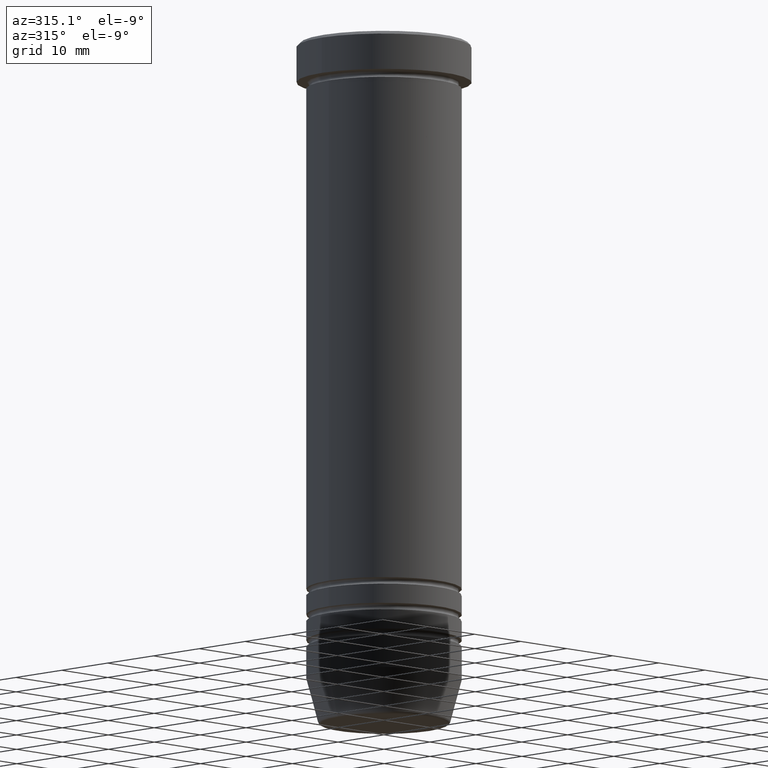
[diagram: clean part render]
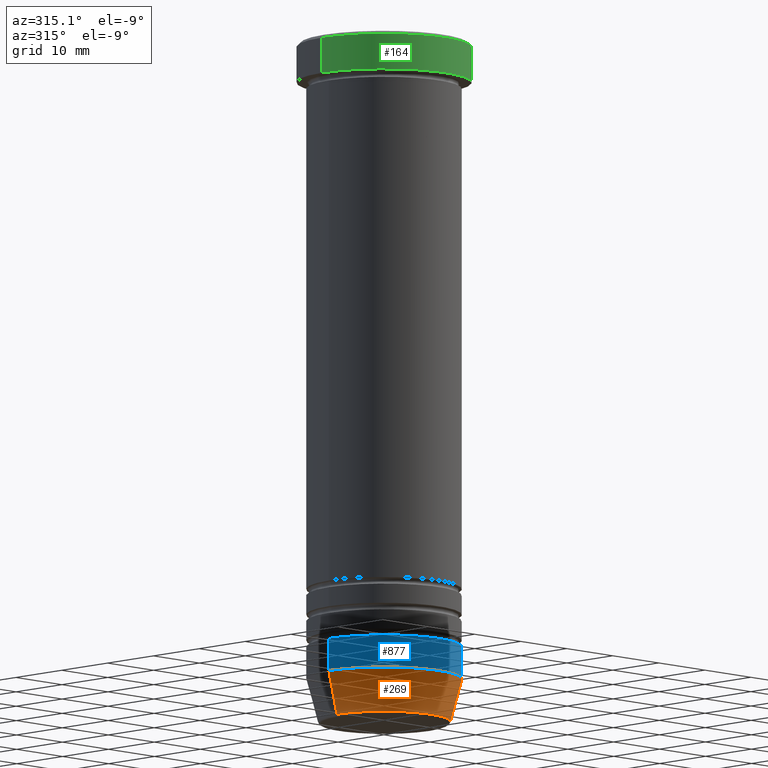
[diagram: same view with three faces highlighted in distinct colors, each labeled with its STEP entity id]
A machine part, auxiliary view with three faces highlighted in distinct colors.
Their STEP definitions:

[orange] entity #269 — the highlighted conical surface has half-angle 15 deg.
#17 = EDGE_LOOP ( 'NONE', ( #965, #77, #167, #592 ) ) ;
#26 = DIRECTION ( 'NONE',  ( -0.2588190451025214611, 3.169619151431774186E-17, 0.9659258262890679791 ) ) ;
#77 = ORIENTED_EDGE ( 'NONE', *, *, #233, .T. ) ;
#101 = DIRECTION ( 'NONE',  ( -0.000000000000000000, -0.000000000000000000, 1.000000000000000000 ) ) ;
#154 = AXIS2_PLACEMENT_3D ( 'NONE', #878, #101, #1072 ) ;
#167 = ORIENTED_EDGE ( 'NONE', *, *, #969, .T. ) ;
#185 = EDGE_CURVE ( 'NONE', #485, #342, #859, .T. ) ;
#233 = EDGE_CURVE ( 'NONE', #837, #900, #380, .T. ) ;
#249 = EDGE_CURVE ( 'NONE', #837, #485, #970, .T. ) ;
#250 = DIRECTION ( 'NONE',  ( -0.000000000000000000, -0.000000000000000000, 1.000000000000000000 ) ) ;
#269 = ADVANCED_FACE ( 'NONE', ( #372 ), #615, .T. ) ;
#312 = CARTESIAN_POINT ( 'NONE',  ( 12.00000000000000178, 0.000000000000000000, -98.99999999999998579 ) ) ;
#313 = CARTESIAN_POINT ( 'NONE',  ( 10.22365507213718594, 0.000000000000000000, -105.6294095225512564 ) ) ;
#323 = VECTOR ( 'NONE', #26, 1000.000000000000114 ) ;
#332 = CARTESIAN_POINT ( 'NONE',  ( 0.000000000000000000, 0.000000000000000000, -98.99999999999998579 ) ) ;
#342 = VERTEX_POINT ( 'NONE', #312 ) ;
#363 = DIRECTION ( 'NONE',  ( 0.2588190451025214611, 0.000000000000000000, 0.9659258262890679791 ) ) ;
#372 = FACE_OUTER_BOUND ( 'NONE', #17, .T. ) ;
#380 = CIRCLE ( 'NONE', #681, 10.22365507213718594 ) ;
#485 = VERTEX_POINT ( 'NONE', #755 ) ;
#538 = CARTESIAN_POINT ( 'NONE',  ( -10.22365507213718594, 1.360806402472382547E-15, -105.6294095225512564 ) ) ;
#550 = CARTESIAN_POINT ( 'NONE',  ( 0.000000000000000000, 0.000000000000000000, -105.6294095225512564 ) ) ;
#592 = ORIENTED_EDGE ( 'NONE', *, *, #185, .F. ) ;
#615 = CONICAL_SURFACE ( 'NONE', #154, 10.12435565298213547, 0.2617993877991502405 ) ;
#620 = VECTOR ( 'NONE', #363, 1000.000000000000114 ) ;
#636 = CARTESIAN_POINT ( 'NONE',  ( 10.12435565298213547, 0.000000000000000000, -106.0000000000000000 ) ) ;
#681 = AXIS2_PLACEMENT_3D ( 'NONE', #550, #809, #988 ) ;
#741 = LINE ( 'NONE', #636, #620 ) ;
#755 = CARTESIAN_POINT ( 'NONE',  ( -12.00000000000000178, 1.469576158976824144E-15, -98.99999999999998579 ) ) ;
#809 = DIRECTION ( 'NONE',  ( -0.000000000000000000, -0.000000000000000000, 1.000000000000000000 ) ) ;
#815 = CARTESIAN_POINT ( 'NONE',  ( -10.12435565298213547, 1.239875974385398349E-15, -106.0000000000000000 ) ) ;
#837 = VERTEX_POINT ( 'NONE', #538 ) ;
#859 = CIRCLE ( 'NONE', #885, 12.00000000000000178 ) ;
#878 = CARTESIAN_POINT ( 'NONE',  ( 0.000000000000000000, 0.000000000000000000, -106.0000000000000000 ) ) ;
#885 = AXIS2_PLACEMENT_3D ( 'NONE', #332, #250, #1145 ) ;
#900 = VERTEX_POINT ( 'NONE', #313 ) ;
#965 = ORIENTED_EDGE ( 'NONE', *, *, #249, .F. ) ;
#969 = EDGE_CURVE ( 'NONE', #900, #342, #741, .T. ) ;
#970 = LINE ( 'NONE', #815, #323 ) ;
#988 = DIRECTION ( 'NONE',  ( -1.000000000000000000, 0.000000000000000000, 0.000000000000000000 ) ) ;
#1072 = DIRECTION ( 'NONE',  ( 1.000000000000000000, 0.000000000000000000, 0.000000000000000000 ) ) ;
#1145 = DIRECTION ( 'NONE',  ( 1.000000000000000000, 0.000000000000000000, 0.000000000000000000 ) ) ;

[blue] entity #877 — the highlighted cylindrical surface (partial cylindrical patch) has radius 12 mm, axis along (-0, -0, 1).
#22 = DIRECTION ( 'NONE',  ( 1.000000000000000000, 0.000000000000000000, 0.000000000000000000 ) ) ;
#30 = LINE ( 'NONE', #1000, #156 ) ;
#39 = DIRECTION ( 'NONE',  ( -0.000000000000000000, -0.000000000000000000, 1.000000000000000000 ) ) ;
#54 = DIRECTION ( 'NONE',  ( -0.000000000000000000, -0.000000000000000000, 1.000000000000000000 ) ) ;
#87 = VECTOR ( 'NONE', #1076, 1000.000000000000000 ) ;
#126 = FACE_OUTER_BOUND ( 'NONE', #558, .T. ) ;
#147 = VERTEX_POINT ( 'NONE', #522 ) ;
#156 = VECTOR ( 'NONE', #54, 1000.000000000000000 ) ;
#184 = DIRECTION ( 'NONE',  ( -0.000000000000000000, -0.000000000000000000, 1.000000000000000000 ) ) ;
#185 = EDGE_CURVE ( 'NONE', #485, #342, #859, .T. ) ;
#195 = CARTESIAN_POINT ( 'NONE',  ( 12.00000000000000178, 0.000000000000000000, 0.000000000000000000 ) ) ;
#202 = LINE ( 'NONE', #195, #87 ) ;
#210 = CIRCLE ( 'NONE', #354, 12.00000000000000178 ) ;
#250 = DIRECTION ( 'NONE',  ( -0.000000000000000000, -0.000000000000000000, 1.000000000000000000 ) ) ;
#312 = CARTESIAN_POINT ( 'NONE',  ( 12.00000000000000178, 0.000000000000000000, -98.99999999999998579 ) ) ;
#332 = CARTESIAN_POINT ( 'NONE',  ( 0.000000000000000000, 0.000000000000000000, -98.99999999999998579 ) ) ;
#342 = VERTEX_POINT ( 'NONE', #312 ) ;
#344 = CARTESIAN_POINT ( 'NONE',  ( 12.00000000000000178, 0.000000000000000000, -94.00000000000000000 ) ) ;
#354 = AXIS2_PLACEMENT_3D ( 'NONE', #1058, #184, #814 ) ;
#377 = ORIENTED_EDGE ( 'NONE', *, *, #393, .F. ) ;
#393 = EDGE_CURVE ( 'NONE', #147, #823, #210, .T. ) ;
#459 = CARTESIAN_POINT ( 'NONE',  ( 0.000000000000000000, 0.000000000000000000, 0.000000000000000000 ) ) ;
#474 = EDGE_CURVE ( 'NONE', #485, #147, #30, .T. ) ;
#478 = CYLINDRICAL_SURFACE ( 'NONE', #1043, 12.00000000000000178 ) ;
#485 = VERTEX_POINT ( 'NONE', #755 ) ;
#522 = CARTESIAN_POINT ( 'NONE',  ( -12.00000000000000178, 1.469576158976824144E-15, -94.00000000000000000 ) ) ;
#558 = EDGE_LOOP ( 'NONE', ( #658, #1084, #907, #377 ) ) ;
#658 = ORIENTED_EDGE ( 'NONE', *, *, #474, .F. ) ;
#755 = CARTESIAN_POINT ( 'NONE',  ( -12.00000000000000178, 1.469576158976824144E-15, -98.99999999999998579 ) ) ;
#814 = DIRECTION ( 'NONE',  ( 1.000000000000000000, 0.000000000000000000, 0.000000000000000000 ) ) ;
#823 = VERTEX_POINT ( 'NONE', #344 ) ;
#859 = CIRCLE ( 'NONE', #885, 12.00000000000000178 ) ;
#877 = ADVANCED_FACE ( 'NONE', ( #126 ), #478, .T. ) ;
#885 = AXIS2_PLACEMENT_3D ( 'NONE', #332, #250, #1145 ) ;
#907 = ORIENTED_EDGE ( 'NONE', *, *, #917, .T. ) ;
#917 = EDGE_CURVE ( 'NONE', #342, #823, #202, .T. ) ;
#1000 = CARTESIAN_POINT ( 'NONE',  ( -12.00000000000000178, 1.469576158976824144E-15, 0.000000000000000000 ) ) ;
#1043 = AXIS2_PLACEMENT_3D ( 'NONE', #459, #39, #22 ) ;
#1058 = CARTESIAN_POINT ( 'NONE',  ( 0.000000000000000000, 0.000000000000000000, -94.00000000000000000 ) ) ;
#1076 = DIRECTION ( 'NONE',  ( -0.000000000000000000, -0.000000000000000000, 1.000000000000000000 ) ) ;
#1084 = ORIENTED_EDGE ( 'NONE', *, *, #185, .T. ) ;
#1145 = DIRECTION ( 'NONE',  ( 1.000000000000000000, 0.000000000000000000, 0.000000000000000000 ) ) ;

[green] entity #164 — the highlighted cylindrical surface (partial cylindrical patch) has radius 13.5 mm, axis along (-0, -0, 1).
#9 = LINE ( 'NONE', #958, #1008 ) ;
#105 = ORIENTED_EDGE ( 'NONE', *, *, #840, .T. ) ;
#116 = EDGE_LOOP ( 'NONE', ( #520, #1038, #105, #633 ) ) ;
#137 = VERTEX_POINT ( 'NONE', #165 ) ;
#164 = ADVANCED_FACE ( 'NONE', ( #241 ), #685, .T. ) ;
#165 = CARTESIAN_POINT ( 'NONE',  ( 13.50000000000000000, 0.000000000000000000, -6.000000000000000000 ) ) ;
#189 = AXIS2_PLACEMENT_3D ( 'NONE', #514, #1123, #329 ) ;
#214 = AXIS2_PLACEMENT_3D ( 'NONE', #731, #993, #747 ) ;
#231 = AXIS2_PLACEMENT_3D ( 'NONE', #1044, #778, #1137 ) ;
#241 = FACE_OUTER_BOUND ( 'NONE', #116, .T. ) ;
#265 = CIRCLE ( 'NONE', #214, 13.50000000000000000 ) ;
#298 = VERTEX_POINT ( 'NONE', #440 ) ;
#311 = EDGE_CURVE ( 'NONE', #298, #1014, #443, .T. ) ;
#329 = DIRECTION ( 'NONE',  ( 1.000000000000000000, 0.000000000000000000, 0.000000000000000000 ) ) ;
#351 = DIRECTION ( 'NONE',  ( -0.000000000000000000, -0.000000000000000000, 1.000000000000000000 ) ) ;
#440 = CARTESIAN_POINT ( 'NONE',  ( -13.50000000000000000, 1.653273178848926867E-15, -6.000000000000000000 ) ) ;
#443 = LINE ( 'NONE', #796, #450 ) ;
#450 = VECTOR ( 'NONE', #351, 1000.000000000000000 ) ;
#514 = CARTESIAN_POINT ( 'NONE',  ( 0.000000000000000000, 0.000000000000000000, -6.000000000000000000 ) ) ;
#520 = ORIENTED_EDGE ( 'NONE', *, *, #311, .F. ) ;
#631 = EDGE_CURVE ( 'NONE', #298, #137, #694, .T. ) ;
#633 = ORIENTED_EDGE ( 'NONE', *, *, #1023, .T. ) ;
#685 = CYLINDRICAL_SURFACE ( 'NONE', #231, 13.50000000000000000 ) ;
#694 = CIRCLE ( 'NONE', #189, 13.50000000000000000 ) ;
#731 = CARTESIAN_POINT ( 'NONE',  ( 0.000000000000000000, 0.000000000000000000, -0.5000000000000056621 ) ) ;
#747 = DIRECTION ( 'NONE',  ( 1.000000000000000000, 0.000000000000000000, 0.000000000000000000 ) ) ;
#778 = DIRECTION ( 'NONE',  ( -0.000000000000000000, -0.000000000000000000, 1.000000000000000000 ) ) ;
#796 = CARTESIAN_POINT ( 'NONE',  ( -13.50000000000000000, 1.653273178848926867E-15, 0.000000000000000000 ) ) ;
#840 = EDGE_CURVE ( 'NONE', #137, #1089, #9, .T. ) ;
#875 = DIRECTION ( 'NONE',  ( -0.000000000000000000, -0.000000000000000000, 1.000000000000000000 ) ) ;
#958 = CARTESIAN_POINT ( 'NONE',  ( 13.50000000000000000, 0.000000000000000000, 0.000000000000000000 ) ) ;
#986 = CARTESIAN_POINT ( 'NONE',  ( -13.50000000000000000, 1.653273178848926867E-15, -0.5000000000000056621 ) ) ;
#993 = DIRECTION ( 'NONE',  ( 0.000000000000000000, 0.000000000000000000, -1.000000000000000000 ) ) ;
#1008 = VECTOR ( 'NONE', #875, 1000.000000000000000 ) ;
#1014 = VERTEX_POINT ( 'NONE', #986 ) ;
#1023 = EDGE_CURVE ( 'NONE', #1089, #1014, #265, .T. ) ;
#1026 = CARTESIAN_POINT ( 'NONE',  ( 13.50000000000000000, 0.000000000000000000, -0.5000000000000056621 ) ) ;
#1038 = ORIENTED_EDGE ( 'NONE', *, *, #631, .T. ) ;
#1044 = CARTESIAN_POINT ( 'NONE',  ( 0.000000000000000000, 0.000000000000000000, 0.000000000000000000 ) ) ;
#1089 = VERTEX_POINT ( 'NONE', #1026 ) ;
#1123 = DIRECTION ( 'NONE',  ( -0.000000000000000000, -0.000000000000000000, 1.000000000000000000 ) ) ;
#1137 = DIRECTION ( 'NONE',  ( 1.000000000000000000, 0.000000000000000000, 0.000000000000000000 ) ) ;